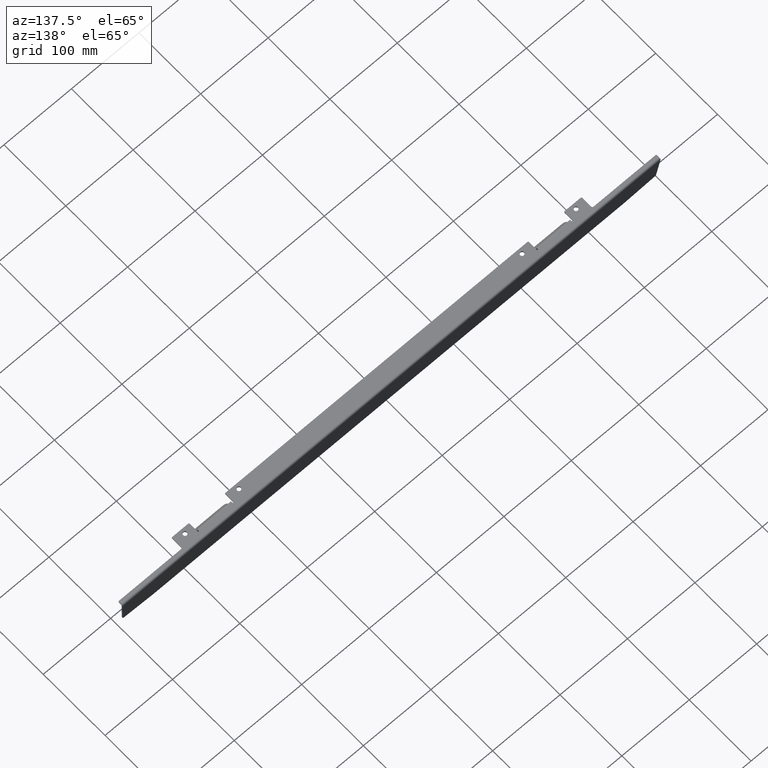
[diagram: clean part render]
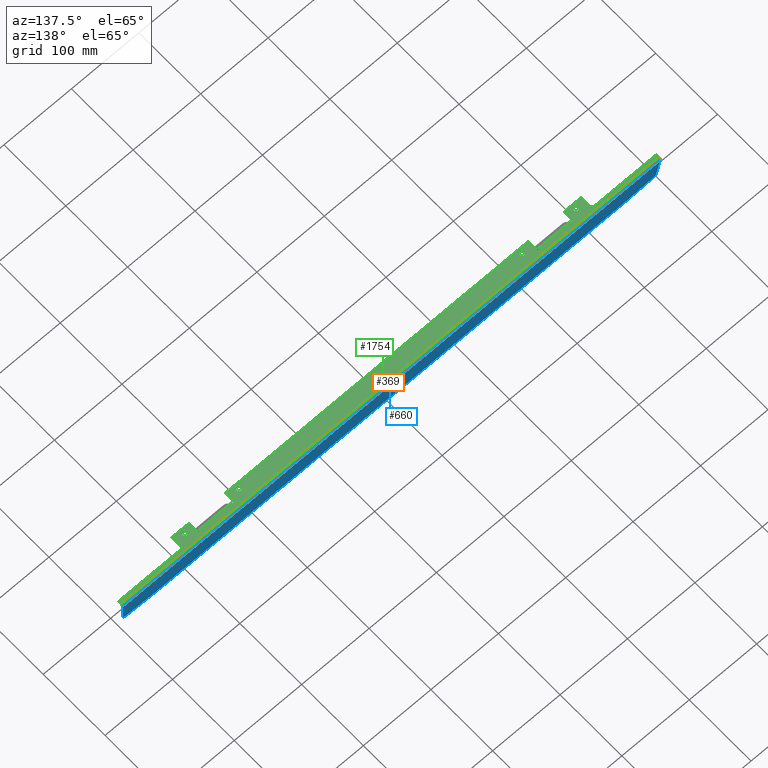
[diagram: same view with three faces highlighted in distinct colors, each labeled with its STEP entity id]
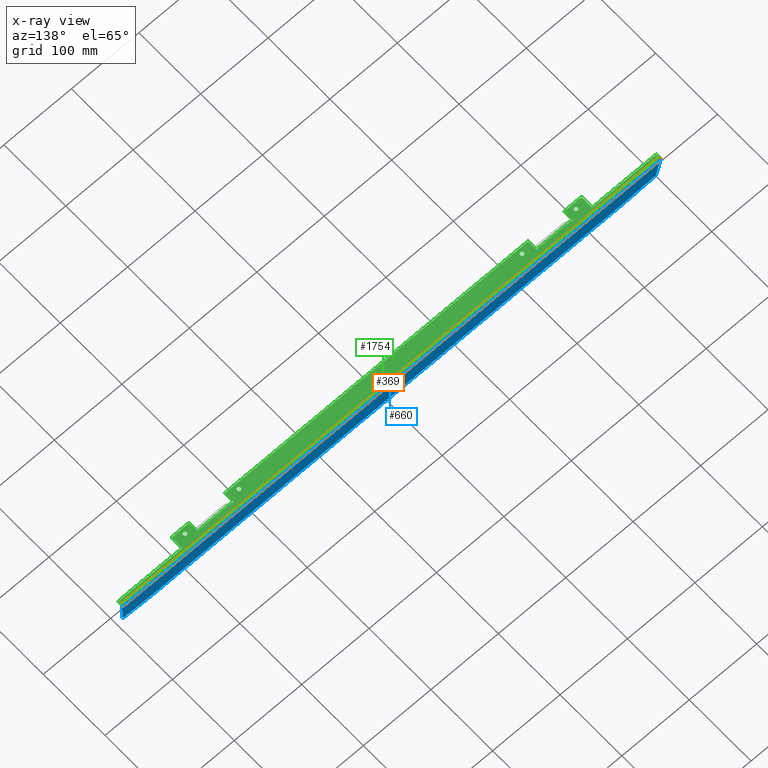
[diagram: x-ray of the same camera — body ghosted, the three highlighted faces saturated]
A machine part, auxiliary view with three faces highlighted in distinct colors.
The next image is the same camera in x-ray (body ghosted, the three faces saturated) — at least one of them is partly hidden behind the body in this view.
Their STEP definitions:

[orange] entity #369 — the highlighted cylindrical surface (edge-blend (fillet) strip) has radius 2.5 mm, axis along (1, 0, 0).
#44 = AXIS2_PLACEMENT_3D ( 'NONE', #2114, #2527, #2560 ) ;
#53 = VERTEX_POINT ( 'NONE', #2705 ) ;
#165 = ORIENTED_EDGE ( 'NONE', *, *, #1677, .F. ) ;
#369 = ADVANCED_FACE ( 'NONE', ( #2807 ), #486, .T. ) ;
#486 = CYLINDRICAL_SURFACE ( 'NONE', #1536, 2.499999999999998200 ) ;
#518 = CIRCLE ( 'NONE', #44, 2.499999999999998700 ) ;
#591 = EDGE_CURVE ( 'NONE', #2342, #53, #1066, .T. ) ;
#609 = VECTOR ( 'NONE', #1374, 1000.000000000000000 ) ;
#735 = EDGE_LOOP ( 'NONE', ( #1651, #165, #912, #932 ) ) ;
#777 = DIRECTION ( 'NONE',  ( 1.000000000000000000, 0.0000000000000000000, 2.168388585518387100E-016 ) ) ;
#824 = EDGE_CURVE ( 'NONE', #1996, #1987, #993, .T. ) ;
#912 = ORIENTED_EDGE ( 'NONE', *, *, #824, .T. ) ;
#932 = ORIENTED_EDGE ( 'NONE', *, *, #968, .F. ) ;
#968 = EDGE_CURVE ( 'NONE', #53, #1987, #518, .T. ) ;
#993 = LINE ( 'NONE', #1621, #609 ) ;
#1005 = CARTESIAN_POINT ( 'NONE',  ( -399.0000000000002300, 18.08515688564803300, -2.717889356869212400 ) ) ;
#1018 = DIRECTION ( 'NONE',  ( 0.0000000000000000000, 0.9961946980917458800, -0.08715574274765480700 ) ) ;
#1044 = DIRECTION ( 'NONE',  ( 0.0000000000000000000, 0.0000000000000000000, -1.000000000000000000 ) ) ;
#1066 = LINE ( 'NONE', #2632, #2566 ) ;
#1221 = CARTESIAN_POINT ( 'NONE',  ( 398.9999999999999400, 18.08515688564826700, -2.717889356869118700 ) ) ;
#1374 = DIRECTION ( 'NONE',  ( -1.000000000000000000, -2.281411774320430800E-018, -2.607665590461909200E-017 ) ) ;
#1516 = CARTESIAN_POINT ( 'NONE',  ( 398.9999999999998900, 15.59467014041866900, -2.499999999999901900 ) ) ;
#1536 = AXIS2_PLACEMENT_3D ( 'NONE', #2288, #777, #1018 ) ;
#1621 = CARTESIAN_POINT ( 'NONE',  ( -399.0000000000000000, 18.08515688564804000, -2.717889356869136900 ) ) ;
#1651 = ORIENTED_EDGE ( 'NONE', *, *, #591, .F. ) ;
#1677 = EDGE_CURVE ( 'NONE', #1996, #2342, #1723, .T. ) ;
#1723 = CIRCLE ( 'NONE', #2278, 2.499999999999999100 ) ;
#1987 = VERTEX_POINT ( 'NONE', #1005 ) ;
#1996 = VERTEX_POINT ( 'NONE', #1221 ) ;
#2114 = CARTESIAN_POINT ( 'NONE',  ( -399.0000000000000000, 15.59467014041866900, -2.500000000000075100 ) ) ;
#2222 = CARTESIAN_POINT ( 'NONE',  ( 398.9999999999998900, 15.59467014041866900, 9.714451465470119700E-014 ) ) ;
#2278 = AXIS2_PLACEMENT_3D ( 'NONE', #1516, #2771, #1044 ) ;
#2288 = CARTESIAN_POINT ( 'NONE',  ( 399.0000000000000000, 15.59467014041866900, -2.499999999999901900 ) ) ;
#2342 = VERTEX_POINT ( 'NONE', #2222 ) ;
#2527 = DIRECTION ( 'NONE',  ( -1.000000000000000000, -0.0000000000000000000, -2.168388585518387100E-016 ) ) ;
#2560 = DIRECTION ( 'NONE',  ( 0.0000000000000000000, 2.081668171172169700E-015, -1.000000000000000000 ) ) ;
#2566 = VECTOR ( 'NONE', #2613, 1000.000000000000000 ) ;
#2613 = DIRECTION ( 'NONE',  ( -1.000000000000000000, -0.0000000000000000000, -0.0000000000000000000 ) ) ;
#2632 = CARTESIAN_POINT ( 'NONE',  ( -399.0000000000000000, 15.59467014041866800, 0.0000000000000000000 ) ) ;
#2705 = CARTESIAN_POINT ( 'NONE',  ( -399.0000000000000000, 15.59467014041866800, 0.0000000000000000000 ) ) ;
#2771 = DIRECTION ( 'NONE',  ( 1.000000000000000000, 0.0000000000000000000, 2.168388585518387100E-016 ) ) ;
#2807 = FACE_OUTER_BOUND ( 'NONE', #735, .T. ) ;

[blue] entity #660 — the highlighted planar face has unit normal (0, -0.9962, 0.0872).
#10 = VERTEX_POINT ( 'NONE', #2698 ) ;
#61 = CIRCLE ( 'NONE', #1134, 2.000000000000001300 ) ;
#65 = DIRECTION ( 'NONE',  ( -0.9961946980917455500, -0.007596123493895708800, -0.08682408883346554000 ) ) ;
#71 = ORIENTED_EDGE ( 'NONE', *, *, #824, .F. ) ;
#72 = DIRECTION ( 'NONE',  ( -0.0000000000000000000, 0.9961946980917458800, -0.08715574274765483500 ) ) ;
#91 = EDGE_LOOP ( 'NONE', ( #1781, #2319, #416, #71, #1350, #1318, #1004, #1421, #1700, #1143 ) ) ;
#130 = DIRECTION ( 'NONE',  ( -1.000000000000000000, 0.0000000000000000000, 0.0000000000000000000 ) ) ;
#140 = EDGE_CURVE ( 'NONE', #2033, #2065, #2513, .T. ) ;
#147 = VECTOR ( 'NONE', #65, 1000.000000000000000 ) ;
#250 = CARTESIAN_POINT ( 'NONE',  ( 393.7016470056448200, 14.45966936871915600, -44.15740129837623600 ) ) ;
#275 = EDGE_CURVE ( 'NONE', #2065, #1667, #2603, .T. ) ;
#364 = CARTESIAN_POINT ( 'NONE',  ( -393.5273355201495100, 14.63331754638607900, -42.17259354536401600 ) ) ;
#377 = CIRCLE ( 'NONE', #1461, 2.000000000000001300 ) ;
#416 = ORIENTED_EDGE ( 'NONE', *, *, #2700, .F. ) ;
#429 = DIRECTION ( 'NONE',  ( 0.0000000000000000000, -0.9961946980917458800, 0.08715574274765484900 ) ) ;
#502 = DIRECTION ( 'NONE',  ( -0.0000000000000000000, 0.9961946980917458800, -0.08715574274765483500 ) ) ;
#512 = CARTESIAN_POINT ( 'NONE',  ( 349.0869895996781900, 14.11947638441322900, -48.04582490202557200 ) ) ;
#528 = EDGE_CURVE ( 'NONE', #10, #1749, #61, .T. ) ;
#608 = DIRECTION ( 'NONE',  ( 0.0000000000000000000, -0.08715574274765521000, -0.9961946980917457700 ) ) ;
#609 = VECTOR ( 'NONE', #1374, 1000.000000000000000 ) ;
#644 = CARTESIAN_POINT ( 'NONE',  ( 0.0000000000000000000, 18.19204778164256800, -1.496120824962571500 ) ) ;
#648 = EDGE_CURVE ( 'NONE', #10, #1667, #820, .T. ) ;
#660 = ADVANCED_FACE ( 'NONE', ( #2208 ), #1748, .F. ) ;
#670 = EDGE_CURVE ( 'NONE', #1949, #1521, #737, .T. ) ;
#737 = CIRCLE ( 'NONE', #956, 2.000000000000001300 ) ;
#820 = LINE ( 'NONE', #884, #1267 ) ;
#824 = EDGE_CURVE ( 'NONE', #1996, #1987, #993, .T. ) ;
#868 = CARTESIAN_POINT ( 'NONE',  ( 396.0756308697994500, 15.17191586287926500, -36.01638661766745000 ) ) ;
#884 = CARTESIAN_POINT ( 'NONE',  ( -6.708781916631687100, 11.50879480564058900, -77.88605189325359400 ) ) ;
#886 = VECTOR ( 'NONE', #1903, 1000.000000000000200 ) ;
#915 = VECTOR ( 'NONE', #130, 1000.000000000000000 ) ;
#948 = DIRECTION ( 'NONE',  ( 0.0000000000000000000, -0.08715574274765521000, -0.9961946980917457700 ) ) ;
#950 = LINE ( 'NONE', #868, #886 ) ;
#956 = AXIS2_PLACEMENT_3D ( 'NONE', #1334, #1133, #1547 ) ;
#993 = LINE ( 'NONE', #1621, #609 ) ;
#998 = CARTESIAN_POINT ( 'NONE',  ( 395.5197249163329000, 14.61812529939828700, -42.34624172303095000 ) ) ;
#1004 = ORIENTED_EDGE ( 'NONE', *, *, #1802, .T. ) ;
#1005 = CARTESIAN_POINT ( 'NONE',  ( -399.0000000000002300, 18.08515688564803300, -2.717889356869212400 ) ) ;
#1041 = DIRECTION ( 'NONE',  ( -0.0000000000000000000, 0.9961946980917458800, -0.08715574274765483500 ) ) ;
#1048 = CARTESIAN_POINT ( 'NONE',  ( -348.9126781141831100, 14.11881307658484300, -48.05340654519684300 ) ) ;
#1055 = VERTEX_POINT ( 'NONE', #512 ) ;
#1105 = DIRECTION ( 'NONE',  ( 0.0000000000000000000, -0.08715574274765483500, -0.9961946980917457700 ) ) ;
#1107 = AXIS2_PLACEMENT_3D ( 'NONE', #644, #429, #1105 ) ;
#1133 = DIRECTION ( 'NONE',  ( -0.0000000000000000000, 0.9961946980917458800, -0.08715574274765483500 ) ) ;
#1134 = AXIS2_PLACEMENT_3D ( 'NONE', #364, #1041, #608 ) ;
#1143 = ORIENTED_EDGE ( 'NONE', *, *, #275, .T. ) ;
#1155 = CARTESIAN_POINT ( 'NONE',  ( 348.9126781141829400, 14.29312456208015400, -46.06101714901335200 ) ) ;
#1221 = CARTESIAN_POINT ( 'NONE',  ( 398.9999999999999400, 18.08515688564826700, -2.717889356869118700 ) ) ;
#1267 = VECTOR ( 'NONE', #2406, 1000.000000000000000 ) ;
#1318 = ORIENTED_EDGE ( 'NONE', *, *, #670, .T. ) ;
#1334 = CARTESIAN_POINT ( 'NONE',  ( 393.5273355201494500, 14.63331754638607900, -42.17259354536401600 ) ) ;
#1350 = ORIENTED_EDGE ( 'NONE', *, *, #1360, .T. ) ;
#1360 = EDGE_CURVE ( 'NONE', #1996, #1949, #950, .T. ) ;
#1368 = CARTESIAN_POINT ( 'NONE',  ( -349.0869895996783600, 14.11947638441323200, -48.04582490202556500 ) ) ;
#1374 = DIRECTION ( 'NONE',  ( -1.000000000000000000, -2.281411774320430800E-018, -2.607665590461909200E-017 ) ) ;
#1394 = CARTESIAN_POINT ( 'NONE',  ( 6.708781916631685300, 11.50879480564058900, -77.88605189325358000 ) ) ;
#1421 = ORIENTED_EDGE ( 'NONE', *, *, #1614, .T. ) ;
#1461 = AXIS2_PLACEMENT_3D ( 'NONE', #1155, #72, #2684 ) ;
#1521 = VERTEX_POINT ( 'NONE', #250 ) ;
#1547 = DIRECTION ( 'NONE',  ( 0.0000000000000000000, -0.08715574274765521000, -0.9961946980917457700 ) ) ;
#1614 = EDGE_CURVE ( 'NONE', #1055, #2033, #377, .T. ) ;
#1621 = CARTESIAN_POINT ( 'NONE',  ( -399.0000000000000000, 18.08515688564804000, -2.717889356869136900 ) ) ;
#1667 = VERTEX_POINT ( 'NONE', #1368 ) ;
#1700 = ORIENTED_EDGE ( 'NONE', *, *, #140, .T. ) ;
#1711 = CARTESIAN_POINT ( 'NONE',  ( -395.5197249163329600, 14.61812529939828700, -42.34624172303095000 ) ) ;
#1748 = PLANE ( 'NONE',  #1107 ) ;
#1749 = VERTEX_POINT ( 'NONE', #1711 ) ;
#1769 = DIRECTION ( 'NONE',  ( 0.08715574274765869300, -0.08682408883346183500, -0.9924038765061041800 ) ) ;
#1781 = ORIENTED_EDGE ( 'NONE', *, *, #648, .F. ) ;
#1802 = EDGE_CURVE ( 'NONE', #1521, #1055, #1887, .T. ) ;
#1883 = CARTESIAN_POINT ( 'NONE',  ( 0.0000000000000000000, 14.11881307658484300, -48.05340654519684300 ) ) ;
#1886 = LINE ( 'NONE', #2425, #2250 ) ;
#1887 = LINE ( 'NONE', #1394, #147 ) ;
#1903 = DIRECTION ( 'NONE',  ( -0.08715574274765869300, -0.08682408883346182100, -0.9924038765061041800 ) ) ;
#1949 = VERTEX_POINT ( 'NONE', #998 ) ;
#1987 = VERTEX_POINT ( 'NONE', #1005 ) ;
#1996 = VERTEX_POINT ( 'NONE', #1221 ) ;
#2033 = VERTEX_POINT ( 'NONE', #2133 ) ;
#2065 = VERTEX_POINT ( 'NONE', #1048 ) ;
#2133 = CARTESIAN_POINT ( 'NONE',  ( 348.9126781141829400, 14.11881307658484300, -48.05340654519684300 ) ) ;
#2208 = FACE_OUTER_BOUND ( 'NONE', #91, .T. ) ;
#2240 = CARTESIAN_POINT ( 'NONE',  ( -348.9126781141831100, 14.29312456208015400, -46.06101714901335200 ) ) ;
#2250 = VECTOR ( 'NONE', #1769, 1000.000000000000100 ) ;
#2257 = AXIS2_PLACEMENT_3D ( 'NONE', #2240, #502, #948 ) ;
#2319 = ORIENTED_EDGE ( 'NONE', *, *, #528, .T. ) ;
#2406 = DIRECTION ( 'NONE',  ( 0.9961946980917455500, -0.007596123493895710600, -0.08682408883346555400 ) ) ;
#2425 = CARTESIAN_POINT ( 'NONE',  ( -396.0756308697995100, 15.17191586287926300, -36.01638661766746500 ) ) ;
#2513 = LINE ( 'NONE', #1883, #915 ) ;
#2603 = CIRCLE ( 'NONE', #2257, 2.000000000000001300 ) ;
#2684 = DIRECTION ( 'NONE',  ( -2.775557561562889500E-014, -0.08715574274765521000, -0.9961946980917457700 ) ) ;
#2698 = CARTESIAN_POINT ( 'NONE',  ( -393.7016470056448700, 14.45966936871915600, -44.15740129837623600 ) ) ;
#2700 = EDGE_CURVE ( 'NONE', #1987, #1749, #1886, .T. ) ;

[green] entity #1754 — the highlighted planar face has unit normal (0, 0, -1).
#8 = CARTESIAN_POINT ( 'NONE',  ( -278.9999999999999400, -6.205329859581410400, 0.0000000000000000000 ) ) ;
#17 = LINE ( 'NONE', #1430, #2166 ) ;
#27 = VERTEX_POINT ( 'NONE', #118 ) ;
#37 = CARTESIAN_POINT ( 'NONE',  ( -292.7500000000000000, 0.2946701404186608500, 0.0000000000000000000 ) ) ;
#53 = VERTEX_POINT ( 'NONE', #2705 ) ;
#55 = VERTEX_POINT ( 'NONE', #994 ) ;
#59 = CIRCLE ( 'NONE', #280, 2.750000000000002700 ) ;
#62 = CARTESIAN_POINT ( 'NONE',  ( 399.0000000000000000, 15.59467014041866800, 0.0000000000000000000 ) ) ;
#67 = CARTESIAN_POINT ( 'NONE',  ( -223.9999999999999700, -5.205329859581403300, 0.0000000000000000000 ) ) ;
#73 = AXIS2_PLACEMENT_3D ( 'NONE', #1837, #959, #964 ) ;
#76 = FACE_BOUND ( 'NONE', #2754, .T. ) ;
#77 = LINE ( 'NONE', #62, #1476 ) ;
#90 = LINE ( 'NONE', #1880, #1094 ) ;
#103 = EDGE_CURVE ( 'NONE', #888, #693, #1058, .T. ) ;
#109 = AXIS2_PLACEMENT_3D ( 'NONE', #2180, #438, #1113 ) ;
#115 = DIRECTION ( 'NONE',  ( 3.828355257328110600E-015, -1.000000000000000000, -0.0000000000000000000 ) ) ;
#118 = CARTESIAN_POINT ( 'NONE',  ( -306.0000000000000600, 11.19467014041866000, 0.0000000000000000000 ) ) ;
#127 = VERTEX_POINT ( 'NONE', #1183 ) ;
#141 = CARTESIAN_POINT ( 'NONE',  ( -277.9999999999999400, 8.294670140418693500, 0.0000000000000000000 ) ) ;
#160 = ORIENTED_EDGE ( 'NONE', *, *, #1103, .T. ) ;
#161 = ORIENTED_EDGE ( 'NONE', *, *, #591, .T. ) ;
#162 = ORIENTED_EDGE ( 'NONE', *, *, #2092, .T. ) ;
#173 = AXIS2_PLACEMENT_3D ( 'NONE', #1150, #920, #2236 ) ;
#180 = CARTESIAN_POINT ( 'NONE',  ( 292.7500000000000000, 0.2946701404186605800, 0.0000000000000000000 ) ) ;
#187 = LINE ( 'NONE', #763, #1407 ) ;
#209 = DIRECTION ( 'NONE',  ( 1.000000000000000000, 0.0000000000000000000, 0.0000000000000000000 ) ) ;
#210 = CARTESIAN_POINT ( 'NONE',  ( 210.0000000000000000, 0.2946701404186596900, 0.0000000000000000000 ) ) ;
#215 = DIRECTION ( 'NONE',  ( 0.0000000000000000000, -1.000000000000000000, 0.0000000000000000000 ) ) ;
#229 = VECTOR ( 'NONE', #115, 1000.000000000000000 ) ;
#247 = LINE ( 'NONE', #2350, #2506 ) ;
#248 = CARTESIAN_POINT ( 'NONE',  ( -276.4999999999999400, 8.294670140418693500, 0.0000000000000000000 ) ) ;
#257 = VERTEX_POINT ( 'NONE', #2457 ) ;
#260 = CIRCLE ( 'NONE', #996, 2.750000000000030200 ) ;
#268 = VERTEX_POINT ( 'NONE', #1376 ) ;
#279 = ORIENTED_EDGE ( 'NONE', *, *, #2110, .F. ) ;
#280 = AXIS2_PLACEMENT_3D ( 'NONE', #210, #1738, #2607 ) ;
#289 = CARTESIAN_POINT ( 'NONE',  ( -304.0000000000000600, 11.19467014041866000, 0.0000000000000000000 ) ) ;
#291 = CIRCLE ( 'NONE', #489, 1.000000000000000900 ) ;
#296 = VERTEX_POINT ( 'NONE', #1603 ) ;
#305 = DIRECTION ( 'NONE',  ( 1.000000000000000000, 0.0000000000000000000, 0.0000000000000000000 ) ) ;
#306 = VECTOR ( 'NONE', #1248, 1000.000000000000000 ) ;
#312 = CARTESIAN_POINT ( 'NONE',  ( -306.0000000000000600, 9.194670140418660200, 0.0000000000000000000 ) ) ;
#331 = DIRECTION ( 'NONE',  ( 0.0000000000000000000, -0.0000000000000000000, -1.000000000000000000 ) ) ;
#334 = AXIS2_PLACEMENT_3D ( 'NONE', #904, #1137, #1788 ) ;
#342 = CIRCLE ( 'NONE', #1307, 1.000000000000000900 ) ;
#345 = DIRECTION ( 'NONE',  ( 1.914177628664054900E-015, 1.000000000000000000, 0.0000000000000000000 ) ) ;
#349 = CARTESIAN_POINT ( 'NONE',  ( 278.9999999999999400, -6.205329859581410400, 0.0000000000000000000 ) ) ;
#362 = DIRECTION ( 'NONE',  ( -0.0000000000000000000, -1.000000000000000000, -0.0000000000000000000 ) ) ;
#371 = VERTEX_POINT ( 'NONE', #349 ) ;
#389 = VERTEX_POINT ( 'NONE', #1871 ) ;
#400 = VERTEX_POINT ( 'NONE', #1000 ) ;
#404 = VERTEX_POINT ( 'NONE', #2060 ) ;
#422 = VECTOR ( 'NONE', #804, 1000.000000000000000 ) ;
#426 = DIRECTION ( 'NONE',  ( 1.000000000000000000, -1.095614826932720600E-016, 0.0000000000000000000 ) ) ;
#433 = ORIENTED_EDGE ( 'NONE', *, *, #2095, .F. ) ;
#437 = LINE ( 'NONE', #2532, #1574 ) ;
#438 = DIRECTION ( 'NONE',  ( 0.0000000000000000000, 0.0000000000000000000, 1.000000000000000000 ) ) ;
#465 = FACE_BOUND ( 'NONE', #1972, .T. ) ;
#475 = DIRECTION ( 'NONE',  ( -0.0000000000000000000, 1.000000000000000000, -0.0000000000000000000 ) ) ;
#489 = AXIS2_PLACEMENT_3D ( 'NONE', #1244, #1474, #1483 ) ;
#495 = VERTEX_POINT ( 'NONE', #1688 ) ;
#496 = CARTESIAN_POINT ( 'NONE',  ( 225.0000000000000000, 8.294670140418658000, 0.0000000000000000000 ) ) ;
#498 = CARTESIAN_POINT ( 'NONE',  ( 224.9999999999999700, -6.205329859581403300, 0.0000000000000000000 ) ) ;
#505 = EDGE_CURVE ( 'NONE', #2075, #1116, #291, .T. ) ;
#513 = DIRECTION ( 'NONE',  ( 1.000000000000000000, 0.0000000000000000000, 0.0000000000000000000 ) ) ;
#530 = CARTESIAN_POINT ( 'NONE',  ( -226.5000000000000300, 7.294670140418658000, 0.0000000000000000000 ) ) ;
#531 = AXIS2_PLACEMENT_3D ( 'NONE', #1611, #2714, #1402 ) ;
#543 = LINE ( 'NONE', #1463, #1856 ) ;
#554 = ORIENTED_EDGE ( 'NONE', *, *, #2169, .T. ) ;
#557 = AXIS2_PLACEMENT_3D ( 'NONE', #1404, #2472, #2277 ) ;
#559 = DIRECTION ( 'NONE',  ( 0.0000000000000000000, 1.000000000000000000, 0.0000000000000000000 ) ) ;
#566 = EDGE_CURVE ( 'NONE', #1447, #2225, #2073, .T. ) ;
#584 = CIRCLE ( 'NONE', #2434, 2.750000000000030200 ) ;
#585 = EDGE_CURVE ( 'NONE', #55, #1776, #894, .T. ) ;
#587 = CARTESIAN_POINT ( 'NONE',  ( -210.0000000000000000, 0.2946701404186596900, 0.0000000000000000000 ) ) ;
#589 = CARTESIAN_POINT ( 'NONE',  ( -277.9999999999999400, -6.205329859581411300, 0.0000000000000000000 ) ) ;
#591 = EDGE_CURVE ( 'NONE', #2342, #53, #1066, .T. ) ;
#597 = EDGE_LOOP ( 'NONE', ( #986, #2572, #1120, #1115, #1226, #1957, #2247, #2412, #896, #2145, #1829, #847, #2598, #1905, #160, #698, #1654, #1265, #2142, #2334, #669, #162, #899, #1289, #1023, #1362, #630, #554, #1277, #1195, #1118, #746, #2266, #161 ) ) ;
#600 = ORIENTED_EDGE ( 'NONE', *, *, #1597, .F. ) ;
#610 = DIRECTION ( 'NONE',  ( 0.0000000000000000000, -1.000000000000000000, 0.0000000000000000000 ) ) ;
#612 = CARTESIAN_POINT ( 'NONE',  ( 0.0000000000000000000, 0.0000000000000000000, 0.0000000000000000000 ) ) ;
#615 = DIRECTION ( 'NONE',  ( 1.000000000000000000, 0.0000000000000000000, 0.0000000000000000000 ) ) ;
#627 = CARTESIAN_POINT ( 'NONE',  ( -304.0000000000000600, 11.19467014041866000, 0.0000000000000000000 ) ) ;
#630 = ORIENTED_EDGE ( 'NONE', *, *, #1578, .T. ) ;
#634 = EDGE_CURVE ( 'NONE', #257, #1522, #260, .T. ) ;
#641 = VERTEX_POINT ( 'NONE', #8 ) ;
#654 = FACE_OUTER_BOUND ( 'NONE', #597, .T. ) ;
#655 = LINE ( 'NONE', #289, #1889 ) ;
#658 = AXIS2_PLACEMENT_3D ( 'NONE', #2410, #801, #1540 ) ;
#663 = VERTEX_POINT ( 'NONE', #2185 ) ;
#669 = ORIENTED_EDGE ( 'NONE', *, *, #1712, .T. ) ;
#677 = CARTESIAN_POINT ( 'NONE',  ( -224.9999999999999700, -5.205329859581406800, 0.0000000000000000000 ) ) ;
#693 = VERTEX_POINT ( 'NONE', #2447 ) ;
#698 = ORIENTED_EDGE ( 'NONE', *, *, #2345, .T. ) ;
#704 = CARTESIAN_POINT ( 'NONE',  ( -223.9999999999999700, -6.205329859581403300, 0.0000000000000000000 ) ) ;
#705 = EDGE_CURVE ( 'NONE', #2589, #641, #1913, .T. ) ;
#720 = DIRECTION ( 'NONE',  ( -1.000000000000000000, 0.0000000000000000000, 0.0000000000000000000 ) ) ;
#739 = DIRECTION ( 'NONE',  ( -1.000000000000000000, 0.0000000000000000000, 0.0000000000000000000 ) ) ;
#742 = CARTESIAN_POINT ( 'NONE',  ( 306.0000000000000600, 11.19467014041866000, 0.0000000000000000000 ) ) ;
#746 = ORIENTED_EDGE ( 'NONE', *, *, #898, .T. ) ;
#755 = CIRCLE ( 'NONE', #557, 2.750000000000002700 ) ;
#760 = AXIS2_PLACEMENT_3D ( 'NONE', #587, #1706, #615 ) ;
#761 = VERTEX_POINT ( 'NONE', #248 ) ;
#763 = CARTESIAN_POINT ( 'NONE',  ( 226.4999999999992600, 7.294670140418658900, 0.0000000000000000000 ) ) ;
#764 = LINE ( 'NONE', #2409, #1069 ) ;
#780 = EDGE_CURVE ( 'NONE', #641, #1222, #2271, .T. ) ;
#784 = CARTESIAN_POINT ( 'NONE',  ( 276.4999999999992600, 8.294670140418661600, 0.0000000000000000000 ) ) ;
#793 = LINE ( 'NONE', #1619, #2048 ) ;
#801 = DIRECTION ( 'NONE',  ( -0.0000000000000000000, 0.0000000000000000000, 1.000000000000000000 ) ) ;
#804 = DIRECTION ( 'NONE',  ( 0.0000000000000000000, 1.000000000000000000, 0.0000000000000000000 ) ) ;
#807 = AXIS2_PLACEMENT_3D ( 'NONE', #2148, #1482, #840 ) ;
#816 = CIRCLE ( 'NONE', #1039, 2.000000000000001800 ) ;
#840 = DIRECTION ( 'NONE',  ( 1.000000000000000000, 0.0000000000000000000, 0.0000000000000000000 ) ) ;
#843 = DIRECTION ( 'NONE',  ( 0.0000000000000000000, -0.0000000000000000000, -1.000000000000000000 ) ) ;
#844 = CARTESIAN_POINT ( 'NONE',  ( -277.9999999999999400, -5.205329859581410400, 0.0000000000000000000 ) ) ;
#847 = ORIENTED_EDGE ( 'NONE', *, *, #1702, .T. ) ;
#849 = VERTEX_POINT ( 'NONE', #2463 ) ;
#872 = AXIS2_PLACEMENT_3D ( 'NONE', #1834, #2462, #739 ) ;
#883 = EDGE_CURVE ( 'NONE', #1970, #761, #1626, .T. ) ;
#888 = VERTEX_POINT ( 'NONE', #2486 ) ;
#894 = CIRCLE ( 'NONE', #109, 2.750000000000002700 ) ;
#896 = ORIENTED_EDGE ( 'NONE', *, *, #951, .T. ) ;
#898 = EDGE_CURVE ( 'NONE', #2226, #389, #2633, .T. ) ;
#899 = ORIENTED_EDGE ( 'NONE', *, *, #1144, .T. ) ;
#904 = CARTESIAN_POINT ( 'NONE',  ( 290.0000000000000000, 0.2946701404186605800, 0.0000000000000000000 ) ) ;
#905 = LINE ( 'NONE', #1021, #306 ) ;
#906 = CIRCLE ( 'NONE', #807, 2.750000000000030200 ) ;
#920 = DIRECTION ( 'NONE',  ( -0.0000000000000000000, 0.0000000000000000000, 1.000000000000000000 ) ) ;
#921 = LINE ( 'NONE', #2733, #229 ) ;
#923 = VERTEX_POINT ( 'NONE', #784 ) ;
#935 = LINE ( 'NONE', #2592, #2615 ) ;
#951 = EDGE_CURVE ( 'NONE', #1222, #1970, #1975, .T. ) ;
#959 = DIRECTION ( 'NONE',  ( -0.0000000000000000000, 0.0000000000000000000, 1.000000000000000000 ) ) ;
#964 = DIRECTION ( 'NONE',  ( -1.000000000000000000, 0.0000000000000000000, 0.0000000000000000000 ) ) ;
#986 = ORIENTED_EDGE ( 'NONE', *, *, #2802, .T. ) ;
#994 = CARTESIAN_POINT ( 'NONE',  ( 207.2500000000000000, 0.2946701404186600200, 0.0000000000000000000 ) ) ;
#996 = AXIS2_PLACEMENT_3D ( 'NONE', #1316, #2831, #209 ) ;
#1000 = CARTESIAN_POINT ( 'NONE',  ( 224.9999999999999700, -5.205329859581405000, 0.0000000000000000000 ) ) ;
#1010 = LINE ( 'NONE', #530, #1925 ) ;
#1014 = DIRECTION ( 'NONE',  ( -0.0000000000000000000, 1.000000000000000000, -0.0000000000000000000 ) ) ;
#1021 = CARTESIAN_POINT ( 'NONE',  ( -226.5000000000000300, 7.294670140418658000, 0.0000000000000000000 ) ) ;
#1023 = ORIENTED_EDGE ( 'NONE', *, *, #1933, .T. ) ;
#1036 = CARTESIAN_POINT ( 'NONE',  ( 277.9999999999999400, 8.294670140418661600, 0.0000000000000000000 ) ) ;
#1039 = AXIS2_PLACEMENT_3D ( 'NONE', #312, #331, #2281 ) ;
#1052 = AXIS2_PLACEMENT_3D ( 'NONE', #2151, #843, #2396 ) ;
#1058 = LINE ( 'NONE', #496, #1937 ) ;
#1066 = LINE ( 'NONE', #2632, #2566 ) ;
#1069 = VECTOR ( 'NONE', #426, 1000.000000000000000 ) ;
#1083 = EDGE_CURVE ( 'NONE', #27, #495, #816, .T. ) ;
#1084 = LINE ( 'NONE', #1885, #1755 ) ;
#1091 = VERTEX_POINT ( 'NONE', #1850 ) ;
#1094 = VECTOR ( 'NONE', #559, 1000.000000000000000 ) ;
#1103 = EDGE_CURVE ( 'NONE', #1091, #2723, #921, .T. ) ;
#1109 = VERTEX_POINT ( 'NONE', #2085 ) ;
#1113 = DIRECTION ( 'NONE',  ( 1.000000000000000000, 0.0000000000000000000, 0.0000000000000000000 ) ) ;
#1115 = ORIENTED_EDGE ( 'NONE', *, *, #1083, .T. ) ;
#1116 = VERTEX_POINT ( 'NONE', #2299 ) ;
#1118 = ORIENTED_EDGE ( 'NONE', *, *, #1411, .T. ) ;
#1120 = ORIENTED_EDGE ( 'NONE', *, *, #2330, .T. ) ;
#1137 = DIRECTION ( 'NONE',  ( 0.0000000000000000000, 0.0000000000000000000, 1.000000000000000000 ) ) ;
#1144 = EDGE_CURVE ( 'NONE', #404, #923, #90, .T. ) ;
#1150 = CARTESIAN_POINT ( 'NONE',  ( -278.9999999999999400, -5.205329859581410400, 0.0000000000000000000 ) ) ;
#1152 = VERTEX_POINT ( 'NONE', #1451 ) ;
#1167 = VECTOR ( 'NONE', #345, 1000.000000000000000 ) ;
#1172 = CARTESIAN_POINT ( 'NONE',  ( -277.9999999999999400, 8.294670140418693500, 0.0000000000000000000 ) ) ;
#1174 = VERTEX_POINT ( 'NONE', #180 ) ;
#1183 = CARTESIAN_POINT ( 'NONE',  ( -212.7500000000000000, 0.2946701404186600200, 0.0000000000000000000 ) ) ;
#1188 = VECTOR ( 'NONE', #1804, 1000.000000000000000 ) ;
#1189 = CARTESIAN_POINT ( 'NONE',  ( 398.0000000000000000, 11.19467014041864900, 0.0000000000000000000 ) ) ;
#1195 = ORIENTED_EDGE ( 'NONE', *, *, #566, .T. ) ;
#1202 = EDGE_CURVE ( 'NONE', #495, #1366, #1423, .T. ) ;
#1204 = LINE ( 'NONE', #1817, #1608 ) ;
#1222 = VERTEX_POINT ( 'NONE', #844 ) ;
#1226 = ORIENTED_EDGE ( 'NONE', *, *, #1202, .T. ) ;
#1231 = AXIS2_PLACEMENT_3D ( 'NONE', #1283, #2816, #1953 ) ;
#1241 = DIRECTION ( 'NONE',  ( 1.000000000000000000, -0.0000000000000000000, -0.0000000000000000000 ) ) ;
#1244 = CARTESIAN_POINT ( 'NONE',  ( -398.0000000000000000, 12.19467014041864900, 0.0000000000000000000 ) ) ;
#1248 = DIRECTION ( 'NONE',  ( 1.000000000000000000, 1.040834085586085700E-016, -0.0000000000000000000 ) ) ;
#1260 = VECTOR ( 'NONE', #610, 1000.000000000000000 ) ;
#1265 = ORIENTED_EDGE ( 'NONE', *, *, #2284, .T. ) ;
#1276 = EDGE_CURVE ( 'NONE', #1366, #2589, #2448, .T. ) ;
#1277 = ORIENTED_EDGE ( 'NONE', *, *, #2411, .T. ) ;
#1283 = CARTESIAN_POINT ( 'NONE',  ( -303.0000000000000600, -5.205329859581389900, 0.0000000000000000000 ) ) ;
#1289 = ORIENTED_EDGE ( 'NONE', *, *, #2494, .T. ) ;
#1300 = EDGE_CURVE ( 'NONE', #1776, #55, #59, .T. ) ;
#1306 = CARTESIAN_POINT ( 'NONE',  ( -304.0000000000000600, -5.205329859581389900, 0.0000000000000000000 ) ) ;
#1307 = AXIS2_PLACEMENT_3D ( 'NONE', #67, #1591, #720 ) ;
#1316 = CARTESIAN_POINT ( 'NONE',  ( -290.0000000000000000, 0.2946701404186605800, 0.0000000000000000000 ) ) ;
#1340 = LINE ( 'NONE', #498, #1167 ) ;
#1362 = ORIENTED_EDGE ( 'NONE', *, *, #2564, .T. ) ;
#1366 = VERTEX_POINT ( 'NONE', #1306 ) ;
#1376 = CARTESIAN_POINT ( 'NONE',  ( -207.2500000000000000, 0.2946701404186596900, 0.0000000000000000000 ) ) ;
#1402 = DIRECTION ( 'NONE',  ( -1.000000000000000000, 0.0000000000000000000, 0.0000000000000000000 ) ) ;
#1404 = CARTESIAN_POINT ( 'NONE',  ( -210.0000000000000000, 0.2946701404186596900, 0.0000000000000000000 ) ) ;
#1407 = VECTOR ( 'NONE', #2290, 1000.000000000000000 ) ;
#1411 = EDGE_CURVE ( 'NONE', #2225, #2226, #764, .T. ) ;
#1418 = ORIENTED_EDGE ( 'NONE', *, *, #1495, .F. ) ;
#1423 = LINE ( 'NONE', #627, #1260 ) ;
#1430 = CARTESIAN_POINT ( 'NONE',  ( -276.4999999999999400, 7.294670140418652700, 0.0000000000000000000 ) ) ;
#1440 = DIRECTION ( 'NONE',  ( -0.0000000000000000000, -1.000000000000000000, -0.0000000000000000000 ) ) ;
#1441 = VECTOR ( 'NONE', #1014, 1000.000000000000000 ) ;
#1447 = VERTEX_POINT ( 'NONE', #2433 ) ;
#1451 = CARTESIAN_POINT ( 'NONE',  ( 223.9999999999999700, -6.205329859581403300, 0.0000000000000000000 ) ) ;
#1460 = CARTESIAN_POINT ( 'NONE',  ( -303.0000000000000600, -6.205329859581388200, 0.0000000000000000000 ) ) ;
#1463 = CARTESIAN_POINT ( 'NONE',  ( 277.9999999999999400, -6.205329859581411300, 0.0000000000000000000 ) ) ;
#1474 = DIRECTION ( 'NONE',  ( -0.0000000000000000000, 0.0000000000000000000, 1.000000000000000000 ) ) ;
#1476 = VECTOR ( 'NONE', #475, 1000.000000000000000 ) ;
#1482 = DIRECTION ( 'NONE',  ( 0.0000000000000000000, 0.0000000000000000000, 1.000000000000000000 ) ) ;
#1483 = DIRECTION ( 'NONE',  ( -1.000000000000000000, 0.0000000000000000000, 0.0000000000000000000 ) ) ;
#1495 = EDGE_CURVE ( 'NONE', #663, #1174, #2581, .T. ) ;
#1496 = CARTESIAN_POINT ( 'NONE',  ( -399.0000000000000000, 12.19467014041864900, 0.0000000000000000000 ) ) ;
#1522 = VERTEX_POINT ( 'NONE', #37 ) ;
#1540 = DIRECTION ( 'NONE',  ( -1.000000000000000000, 0.0000000000000000000, 0.0000000000000000000 ) ) ;
#1574 = VECTOR ( 'NONE', #2054, 1000.000000000000000 ) ;
#1578 = EDGE_CURVE ( 'NONE', #371, #1639, #1204, .T. ) ;
#1586 = CARTESIAN_POINT ( 'NONE',  ( -226.5000000000000300, 8.294670140418656200, 0.0000000000000000000 ) ) ;
#1591 = DIRECTION ( 'NONE',  ( -0.0000000000000000000, 0.0000000000000000000, 1.000000000000000000 ) ) ;
#1597 = EDGE_CURVE ( 'NONE', #1522, #257, #584, .T. ) ;
#1603 = CARTESIAN_POINT ( 'NONE',  ( 277.9999999999999400, -5.205329859581410400, 0.0000000000000000000 ) ) ;
#1605 = DIRECTION ( 'NONE',  ( 1.000000000000000000, 9.007218048341087100E-016, -0.0000000000000000000 ) ) ;
#1608 = VECTOR ( 'NONE', #1605, 1000.000000000000000 ) ;
#1611 = CARTESIAN_POINT ( 'NONE',  ( 398.0000000000000000, 12.19467014041864900, 0.0000000000000000000 ) ) ;
#1619 = CARTESIAN_POINT ( 'NONE',  ( 224.9999999999999700, -6.205329859581403300, 0.0000000000000000000 ) ) ;
#1625 = VERTEX_POINT ( 'NONE', #1586 ) ;
#1626 = LINE ( 'NONE', #1172, #2177 ) ;
#1639 = VERTEX_POINT ( 'NONE', #2041 ) ;
#1654 = ORIENTED_EDGE ( 'NONE', *, *, #2309, .T. ) ;
#1674 = ORIENTED_EDGE ( 'NONE', *, *, #1901, .F. ) ;
#1688 = CARTESIAN_POINT ( 'NONE',  ( -304.0000000000000600, 9.194670140418660200, 0.0000000000000000000 ) ) ;
#1702 = EDGE_CURVE ( 'NONE', #2423, #2656, #905, .T. ) ;
#1706 = DIRECTION ( 'NONE',  ( 0.0000000000000000000, 0.0000000000000000000, 1.000000000000000000 ) ) ;
#1712 = EDGE_CURVE ( 'NONE', #693, #849, #187, .T. ) ;
#1738 = DIRECTION ( 'NONE',  ( 0.0000000000000000000, 0.0000000000000000000, 1.000000000000000000 ) ) ;
#1754 = ADVANCED_FACE ( 'NONE', ( #2822, #76, #465, #2742, #654 ), #1923, .F. ) ;
#1755 = VECTOR ( 'NONE', #1241, 1000.000000000000000 ) ;
#1776 = VERTEX_POINT ( 'NONE', #1916 ) ;
#1788 = DIRECTION ( 'NONE',  ( 1.000000000000000000, 0.0000000000000000000, 0.0000000000000000000 ) ) ;
#1803 = DIRECTION ( 'NONE',  ( 1.000000000000000000, 1.095614826932720600E-016, -0.0000000000000000000 ) ) ;
#1804 = DIRECTION ( 'NONE',  ( 1.000000000000000000, -9.007218048341087100E-016, -0.0000000000000000000 ) ) ;
#1817 = CARTESIAN_POINT ( 'NONE',  ( 304.0000000000000600, -6.205329859581388200, 0.0000000000000000000 ) ) ;
#1829 = ORIENTED_EDGE ( 'NONE', *, *, #2444, .T. ) ;
#1834 = CARTESIAN_POINT ( 'NONE',  ( 223.9999999999999700, -5.205329859581403300, 0.0000000000000000000 ) ) ;
#1837 = CARTESIAN_POINT ( 'NONE',  ( 303.0000000000000600, -5.205329859581388200, 0.0000000000000000000 ) ) ;
#1850 = CARTESIAN_POINT ( 'NONE',  ( -225.0000000000000300, 8.294670140418656200, 0.0000000000000000000 ) ) ;
#1856 = VECTOR ( 'NONE', #362, 1000.000000000000000 ) ;
#1869 = EDGE_LOOP ( 'NONE', ( #1674, #279 ) ) ;
#1871 = CARTESIAN_POINT ( 'NONE',  ( 399.0000000000000000, 12.19467014041864900, 0.0000000000000000000 ) ) ;
#1880 = CARTESIAN_POINT ( 'NONE',  ( 276.4999999999992600, 7.294670140418658900, 0.0000000000000000000 ) ) ;
#1885 = CARTESIAN_POINT ( 'NONE',  ( -225.0000000000000300, 8.294670140418656200, 0.0000000000000000000 ) ) ;
#1889 = VECTOR ( 'NONE', #1803, 1000.000000000000000 ) ;
#1900 = VERTEX_POINT ( 'NONE', #1036 ) ;
#1901 = EDGE_CURVE ( 'NONE', #268, #127, #2407, .T. ) ;
#1905 = ORIENTED_EDGE ( 'NONE', *, *, #1999, .T. ) ;
#1913 = LINE ( 'NONE', #2224, #1188 ) ;
#1916 = CARTESIAN_POINT ( 'NONE',  ( 212.7500000000000000, 0.2946701404186596900, 0.0000000000000000000 ) ) ;
#1923 = PLANE ( 'NONE',  #2827 ) ;
#1925 = VECTOR ( 'NONE', #2502, 1000.000000000000000 ) ;
#1933 = EDGE_CURVE ( 'NONE', #1900, #296, #543, .T. ) ;
#1937 = VECTOR ( 'NONE', #305, 1000.000000000000000 ) ;
#1953 = DIRECTION ( 'NONE',  ( -1.000000000000000000, 0.0000000000000000000, 0.0000000000000000000 ) ) ;
#1957 = ORIENTED_EDGE ( 'NONE', *, *, #1276, .T. ) ;
#1968 = EDGE_LOOP ( 'NONE', ( #433, #1418 ) ) ;
#1970 = VERTEX_POINT ( 'NONE', #141 ) ;
#1972 = EDGE_LOOP ( 'NONE', ( #1995, #600 ) ) ;
#1975 = LINE ( 'NONE', #589, #422 ) ;
#1995 = ORIENTED_EDGE ( 'NONE', *, *, #634, .F. ) ;
#1999 = EDGE_CURVE ( 'NONE', #1625, #1091, #1084, .T. ) ;
#2041 = CARTESIAN_POINT ( 'NONE',  ( 303.0000000000000600, -6.205329859581388200, 0.0000000000000000000 ) ) ;
#2048 = VECTOR ( 'NONE', #2699, 1000.000000000000000 ) ;
#2054 = DIRECTION ( 'NONE',  ( 1.000000000000000000, -0.0000000000000000000, -0.0000000000000000000 ) ) ;
#2060 = CARTESIAN_POINT ( 'NONE',  ( 276.4999999999992600, 7.294670140418658900, 0.0000000000000000000 ) ) ;
#2073 = CIRCLE ( 'NONE', #1052, 2.000000000000001800 ) ;
#2075 = VERTEX_POINT ( 'NONE', #1496 ) ;
#2085 = CARTESIAN_POINT ( 'NONE',  ( 304.0000000000000600, -5.205329859581386400, 0.0000000000000000000 ) ) ;
#2090 = CARTESIAN_POINT ( 'NONE',  ( 304.0000000000000600, 11.19467014041866000, 0.0000000000000000000 ) ) ;
#2092 = EDGE_CURVE ( 'NONE', #849, #404, #247, .T. ) ;
#2095 = EDGE_CURVE ( 'NONE', #1174, #663, #906, .T. ) ;
#2097 = CARTESIAN_POINT ( 'NONE',  ( -276.4999999999999400, 7.294670140418649100, -2.168404344971008900E-015 ) ) ;
#2108 = ORIENTED_EDGE ( 'NONE', *, *, #1300, .F. ) ;
#2110 = EDGE_CURVE ( 'NONE', #127, #268, #755, .T. ) ;
#2128 = CIRCLE ( 'NONE', #872, 1.000000000000000900 ) ;
#2135 = DIRECTION ( 'NONE',  ( -1.000000000000000000, 0.0000000000000000000, -0.0000000000000000000 ) ) ;
#2142 = ORIENTED_EDGE ( 'NONE', *, *, #2395, .T. ) ;
#2145 = ORIENTED_EDGE ( 'NONE', *, *, #883, .T. ) ;
#2148 = CARTESIAN_POINT ( 'NONE',  ( 290.0000000000000000, 0.2946701404186605800, 0.0000000000000000000 ) ) ;
#2151 = CARTESIAN_POINT ( 'NONE',  ( 306.0000000000000600, 9.194670140418660200, 0.0000000000000000000 ) ) ;
#2166 = VECTOR ( 'NONE', #1440, 1000.000000000000000 ) ;
#2169 = EDGE_CURVE ( 'NONE', #1639, #1109, #2370, .T. ) ;
#2177 = VECTOR ( 'NONE', #2708, 1000.000000000000000 ) ;
#2180 = CARTESIAN_POINT ( 'NONE',  ( 210.0000000000000000, 0.2946701404186596900, 0.0000000000000000000 ) ) ;
#2185 = CARTESIAN_POINT ( 'NONE',  ( 287.2499999999999400, 0.2946701404186608500, 0.0000000000000000000 ) ) ;
#2222 = CARTESIAN_POINT ( 'NONE',  ( 398.9999999999998900, 15.59467014041866900, 9.714451465470119700E-014 ) ) ;
#2224 = CARTESIAN_POINT ( 'NONE',  ( -277.9999999999999400, -6.205329859581411300, 0.0000000000000000000 ) ) ;
#2225 = VERTEX_POINT ( 'NONE', #742 ) ;
#2226 = VERTEX_POINT ( 'NONE', #1189 ) ;
#2229 = CARTESIAN_POINT ( 'NONE',  ( -290.0000000000000000, 0.2946701404186605800, 0.0000000000000000000 ) ) ;
#2236 = DIRECTION ( 'NONE',  ( -1.000000000000000000, 0.0000000000000000000, 0.0000000000000000000 ) ) ;
#2247 = ORIENTED_EDGE ( 'NONE', *, *, #705, .T. ) ;
#2266 = ORIENTED_EDGE ( 'NONE', *, *, #2371, .T. ) ;
#2271 = CIRCLE ( 'NONE', #173, 1.000000000000000900 ) ;
#2277 = DIRECTION ( 'NONE',  ( 1.000000000000000000, 0.0000000000000000000, 0.0000000000000000000 ) ) ;
#2281 = DIRECTION ( 'NONE',  ( -1.000000000000000000, 0.0000000000000000000, 0.0000000000000000000 ) ) ;
#2284 = EDGE_CURVE ( 'NONE', #1152, #400, #2128, .T. ) ;
#2290 = DIRECTION ( 'NONE',  ( -0.0000000000000000000, -1.000000000000000000, -0.0000000000000000000 ) ) ;
#2299 = CARTESIAN_POINT ( 'NONE',  ( -398.0000000000000000, 11.19467014041864900, 0.0000000000000000000 ) ) ;
#2309 = EDGE_CURVE ( 'NONE', #2373, #1152, #793, .T. ) ;
#2320 = ORIENTED_EDGE ( 'NONE', *, *, #585, .F. ) ;
#2329 = DIRECTION ( 'NONE',  ( 0.0000000000000000000, 0.0000000000000000000, -1.000000000000000000 ) ) ;
#2330 = EDGE_CURVE ( 'NONE', #1116, #27, #655, .T. ) ;
#2334 = ORIENTED_EDGE ( 'NONE', *, *, #103, .T. ) ;
#2342 = VERTEX_POINT ( 'NONE', #2222 ) ;
#2345 = EDGE_CURVE ( 'NONE', #2723, #2373, #342, .T. ) ;
#2350 = CARTESIAN_POINT ( 'NONE',  ( 226.4999999999992600, 7.294670140418658900, 0.0000000000000000000 ) ) ;
#2370 = CIRCLE ( 'NONE', #73, 1.000000000000000900 ) ;
#2371 = EDGE_CURVE ( 'NONE', #389, #2342, #77, .T. ) ;
#2373 = VERTEX_POINT ( 'NONE', #704 ) ;
#2395 = EDGE_CURVE ( 'NONE', #400, #888, #1340, .T. ) ;
#2396 = DIRECTION ( 'NONE',  ( -1.000000000000000000, 0.0000000000000000000, 0.0000000000000000000 ) ) ;
#2402 = CIRCLE ( 'NONE', #658, 1.000000000000000900 ) ;
#2407 = CIRCLE ( 'NONE', #760, 2.750000000000002700 ) ;
#2409 = CARTESIAN_POINT ( 'NONE',  ( 304.0000000000000600, 11.19467014041866000, 0.0000000000000000000 ) ) ;
#2410 = CARTESIAN_POINT ( 'NONE',  ( 278.9999999999999400, -5.205329859581410400, 0.0000000000000000000 ) ) ;
#2411 = EDGE_CURVE ( 'NONE', #1109, #1447, #2617, .T. ) ;
#2412 = ORIENTED_EDGE ( 'NONE', *, *, #780, .T. ) ;
#2423 = VERTEX_POINT ( 'NONE', #2097 ) ;
#2433 = CARTESIAN_POINT ( 'NONE',  ( 304.0000000000000600, 9.194670140418660200, 0.0000000000000000000 ) ) ;
#2434 = AXIS2_PLACEMENT_3D ( 'NONE', #2229, #2469, #513 ) ;
#2444 = EDGE_CURVE ( 'NONE', #761, #2423, #17, .T. ) ;
#2447 = CARTESIAN_POINT ( 'NONE',  ( 226.4999999999992600, 8.294670140418658000, 0.0000000000000000000 ) ) ;
#2448 = CIRCLE ( 'NONE', #1231, 1.000000000000000900 ) ;
#2457 = CARTESIAN_POINT ( 'NONE',  ( -287.2499999999999400, 0.2946701404186605800, 0.0000000000000000000 ) ) ;
#2462 = DIRECTION ( 'NONE',  ( -0.0000000000000000000, 0.0000000000000000000, 1.000000000000000000 ) ) ;
#2463 = CARTESIAN_POINT ( 'NONE',  ( 226.4999999999992600, 7.294670140418658900, -4.336808689942017700E-016 ) ) ;
#2469 = DIRECTION ( 'NONE',  ( 0.0000000000000000000, 0.0000000000000000000, 1.000000000000000000 ) ) ;
#2472 = DIRECTION ( 'NONE',  ( 0.0000000000000000000, 0.0000000000000000000, 1.000000000000000000 ) ) ;
#2486 = CARTESIAN_POINT ( 'NONE',  ( 225.0000000000000000, 8.294670140418658000, 0.0000000000000000000 ) ) ;
#2494 = EDGE_CURVE ( 'NONE', #923, #1900, #437, .T. ) ;
#2502 = DIRECTION ( 'NONE',  ( 0.0000000000000000000, 1.000000000000000000, 0.0000000000000000000 ) ) ;
#2506 = VECTOR ( 'NONE', #2812, 1000.000000000000000 ) ;
#2518 = EDGE_CURVE ( 'NONE', #2656, #1625, #1010, .T. ) ;
#2532 = CARTESIAN_POINT ( 'NONE',  ( 277.9999999999999400, 8.294670140418661600, 0.0000000000000000000 ) ) ;
#2564 = EDGE_CURVE ( 'NONE', #296, #371, #2402, .T. ) ;
#2566 = VECTOR ( 'NONE', #2613, 1000.000000000000000 ) ;
#2572 = ORIENTED_EDGE ( 'NONE', *, *, #505, .T. ) ;
#2577 = CARTESIAN_POINT ( 'NONE',  ( -226.5000000000000300, 7.294670140418658000, 0.0000000000000000000 ) ) ;
#2581 = CIRCLE ( 'NONE', #334, 2.750000000000030200 ) ;
#2589 = VERTEX_POINT ( 'NONE', #1460 ) ;
#2592 = CARTESIAN_POINT ( 'NONE',  ( -399.0000000000000000, 15.59467014041866800, 0.0000000000000000000 ) ) ;
#2598 = ORIENTED_EDGE ( 'NONE', *, *, #2518, .T. ) ;
#2607 = DIRECTION ( 'NONE',  ( 1.000000000000000000, 0.0000000000000000000, 0.0000000000000000000 ) ) ;
#2613 = DIRECTION ( 'NONE',  ( -1.000000000000000000, -0.0000000000000000000, -0.0000000000000000000 ) ) ;
#2615 = VECTOR ( 'NONE', #215, 1000.000000000000000 ) ;
#2617 = LINE ( 'NONE', #2090, #1441 ) ;
#2632 = CARTESIAN_POINT ( 'NONE',  ( -399.0000000000000000, 15.59467014041866800, 0.0000000000000000000 ) ) ;
#2633 = CIRCLE ( 'NONE', #531, 1.000000000000000900 ) ;
#2656 = VERTEX_POINT ( 'NONE', #2577 ) ;
#2699 = DIRECTION ( 'NONE',  ( 1.000000000000000000, -0.0000000000000000000, -0.0000000000000000000 ) ) ;
#2705 = CARTESIAN_POINT ( 'NONE',  ( -399.0000000000000000, 15.59467014041866800, 0.0000000000000000000 ) ) ;
#2708 = DIRECTION ( 'NONE',  ( 1.000000000000000000, 0.0000000000000000000, 0.0000000000000000000 ) ) ;
#2714 = DIRECTION ( 'NONE',  ( -0.0000000000000000000, 0.0000000000000000000, 1.000000000000000000 ) ) ;
#2723 = VERTEX_POINT ( 'NONE', #677 ) ;
#2733 = CARTESIAN_POINT ( 'NONE',  ( -224.9999999999999700, -6.205329859581403300, 0.0000000000000000000 ) ) ;
#2742 = FACE_BOUND ( 'NONE', #1869, .T. ) ;
#2754 = EDGE_LOOP ( 'NONE', ( #2108, #2320 ) ) ;
#2802 = EDGE_CURVE ( 'NONE', #53, #2075, #935, .T. ) ;
#2812 = DIRECTION ( 'NONE',  ( 1.000000000000000000, 0.0000000000000000000, 0.0000000000000000000 ) ) ;
#2816 = DIRECTION ( 'NONE',  ( -0.0000000000000000000, 0.0000000000000000000, 1.000000000000000000 ) ) ;
#2822 = FACE_BOUND ( 'NONE', #1968, .T. ) ;
#2827 = AXIS2_PLACEMENT_3D ( 'NONE', #612, #2329, #2135 ) ;
#2831 = DIRECTION ( 'NONE',  ( 0.0000000000000000000, 0.0000000000000000000, 1.000000000000000000 ) ) ;